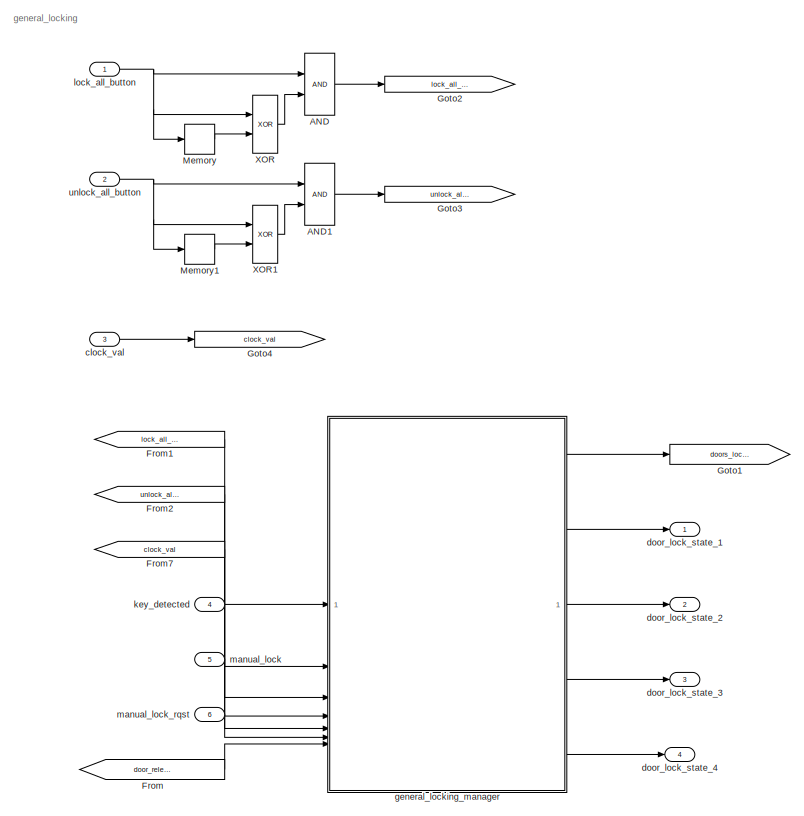
[diagram: root canvas - part 1/2, left side, full height]
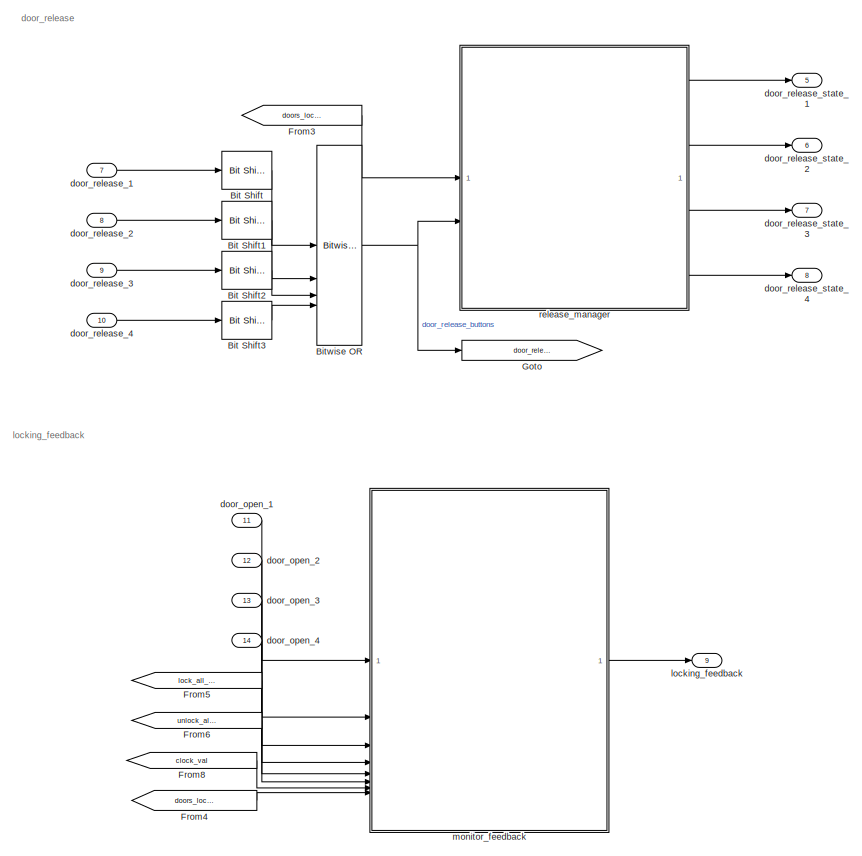
[diagram: root canvas - part 2/2, right side, full height]
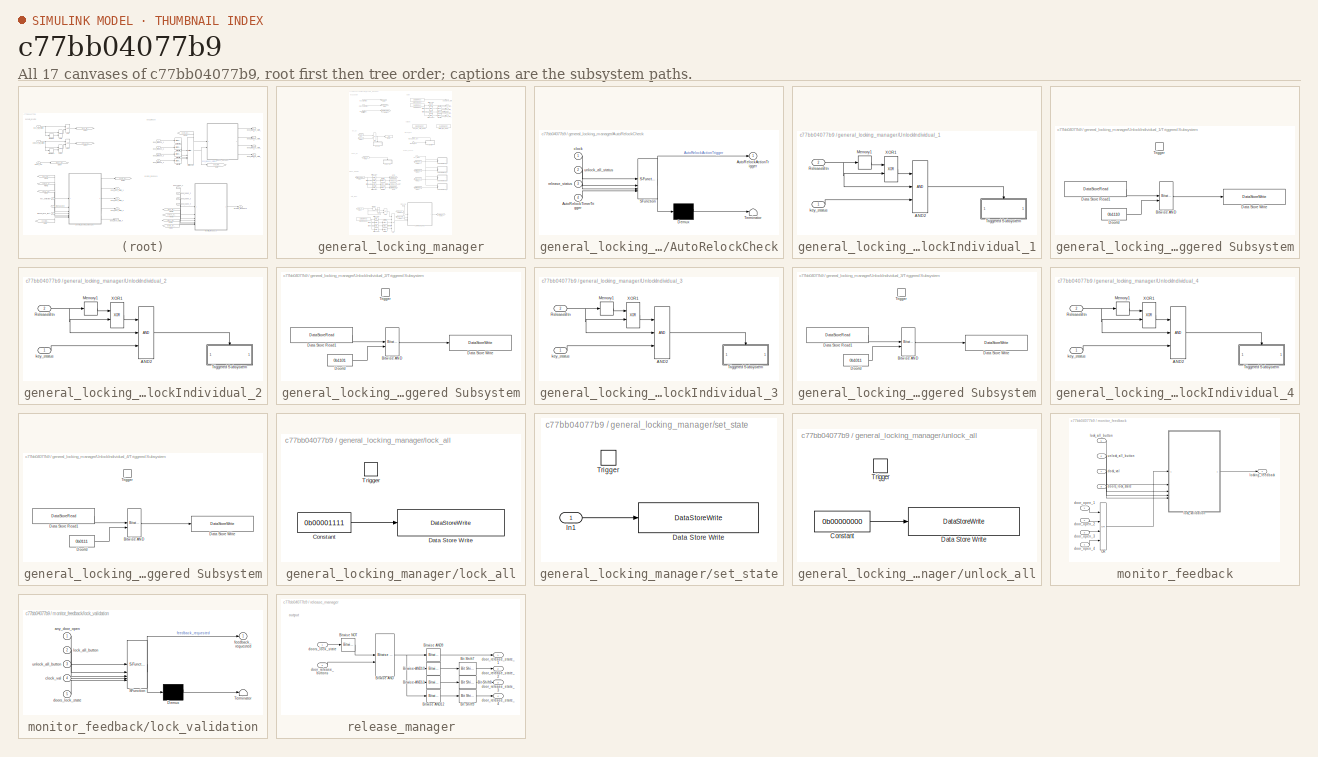
[diagram: thumbnail index - all 17 canvases of the model, root first then tree order]
MODEL slx_c77bb04077b9
KIND model
CONFIG AbsTol = auto
CONFIG EnableMultiTasking = off
CONFIG FixedStep = 0.01
CONFIG MaxStep = auto
CONFIG MinStep = auto
CONFIG RelTol = 1e-3
CONFIG SampleTimeConstraint = Unconstrained
CONFIG SolverName = FixedStepAuto
CONFIG StartTime = 0.0
CONFIG StopTime = inf
BLOCK [Logic] AND
  AllPortsSameDT = off
  IconShape = distinctive
  OutDataTypeStr = boolean
BLOCK [Logic] AND1
  AllPortsSameDT = off
  IconShape = distinctive
  OutDataTypeStr = boolean
BLOCK [Reference] Bit Shift  REF=hdlsllib/Logic and Bit
Operations/Bit Shift
  SourceBlock = hdlsllib/Logic and Bit\nOperations/Bit Shift
  SourceType = Bit Shift
BLOCK [Reference] Bit Shift1  REF=hdlsllib/Logic and Bit
Operations/Bit Shift
  SourceBlock = hdlsllib/Logic and Bit\nOperations/Bit Shift
  SourceType = Bit Shift
BLOCK [Reference] Bit Shift2  REF=hdlsllib/Logic and Bit
Operations/Bit Shift
  SourceBlock = hdlsllib/Logic and Bit\nOperations/Bit Shift
  SourceType = Bit Shift
BLOCK [Reference] Bit Shift3  REF=hdlsllib/Logic and Bit
Operations/Bit Shift
  SourceBlock = hdlsllib/Logic and Bit\nOperations/Bit Shift
  SourceType = Bit Shift
BLOCK [Reference] Bitwise OR  REF=simulink/Logic and Bit
Operations/Bitwise
Operator
  LibrarySourceBlock = simulink/Quick Insert/Logic and Bit\nOperations/Bitwise OR
  SourceBlock = simulink/Logic and Bit\nOperations/Bitwise\nOperator
  SourceType = Bitwise Operator
BLOCK [From] From
  GotoTag = door_release_buttons
BLOCK [From] From1
  GotoTag = lock_all_button
BLOCK [From] From2
  GotoTag = unlock_all_button
BLOCK [From] From3
  GotoTag = doors_lock_state
BLOCK [From] From4
  GotoTag = doors_lock_state
BLOCK [From] From5
  GotoTag = lock_all_button
BLOCK [From] From6
  GotoTag = unlock_all_button
BLOCK [From] From7
  GotoTag = clock_val
BLOCK [From] From8
  GotoTag = clock_val
BLOCK [Goto] Goto
  GotoTag = door_release_buttons
BLOCK [Goto] Goto1
  GotoTag = doors_lock_state
BLOCK [Goto] Goto2
  GotoTag = lock_all_button
BLOCK [Goto] Goto3
  GotoTag = unlock_all_button
BLOCK [Goto] Goto4
  GotoTag = clock_val
BLOCK [Memory] Memory
BLOCK [Memory] Memory1
BLOCK [Logic] XOR
  AllPortsSameDT = off
  IconShape = distinctive
  Operator = XOR
  OutDataTypeStr = boolean
BLOCK [Logic] XOR1
  AllPortsSameDT = off
  IconShape = distinctive
  Operator = XOR
  OutDataTypeStr = boolean
BLOCK [Inport] clock_val
  OutDataTypeStr = uint64
  Port = 3
BLOCK [Outport] door_lock_state_1
  OutDataTypeStr = uint8
BLOCK [Outport] door_lock_state_2
  OutDataTypeStr = uint8
  Port = 2
BLOCK [Outport] door_lock_state_3
  OutDataTypeStr = uint8
  Port = 3
BLOCK [Outport] door_lock_state_4
  OutDataTypeStr = uint8
  Port = 4
BLOCK [Inport] door_open_1
  OutDataTypeStr = uint8
  Port = 11
BLOCK [Inport] door_open_2
  OutDataTypeStr = uint8
  Port = 12
BLOCK [Inport] door_open_3
  OutDataTypeStr = uint8
  Port = 13
BLOCK [Inport] door_open_4
  OutDataTypeStr = uint8
  Port = 14
BLOCK [Inport] door_release_1
  OutDataTypeStr = uint8
  Port = 7
BLOCK [Inport] door_release_2
  OutDataTypeStr = uint8
  Port = 8
BLOCK [Inport] door_release_3
  OutDataTypeStr = uint8
  Port = 9
BLOCK [Inport] door_release_4
  OutDataTypeStr = uint8
  Port = 10
BLOCK [Outport] door_release_state_1
  OutDataTypeStr = uint8
  Port = 5
BLOCK [Outport] door_release_state_2
  OutDataTypeStr = uint8
  Port = 6
BLOCK [Outport] door_release_state_3
  OutDataTypeStr = uint8
  Port = 7
BLOCK [Outport] door_release_state_4
  OutDataTypeStr = uint8
  Port = 8
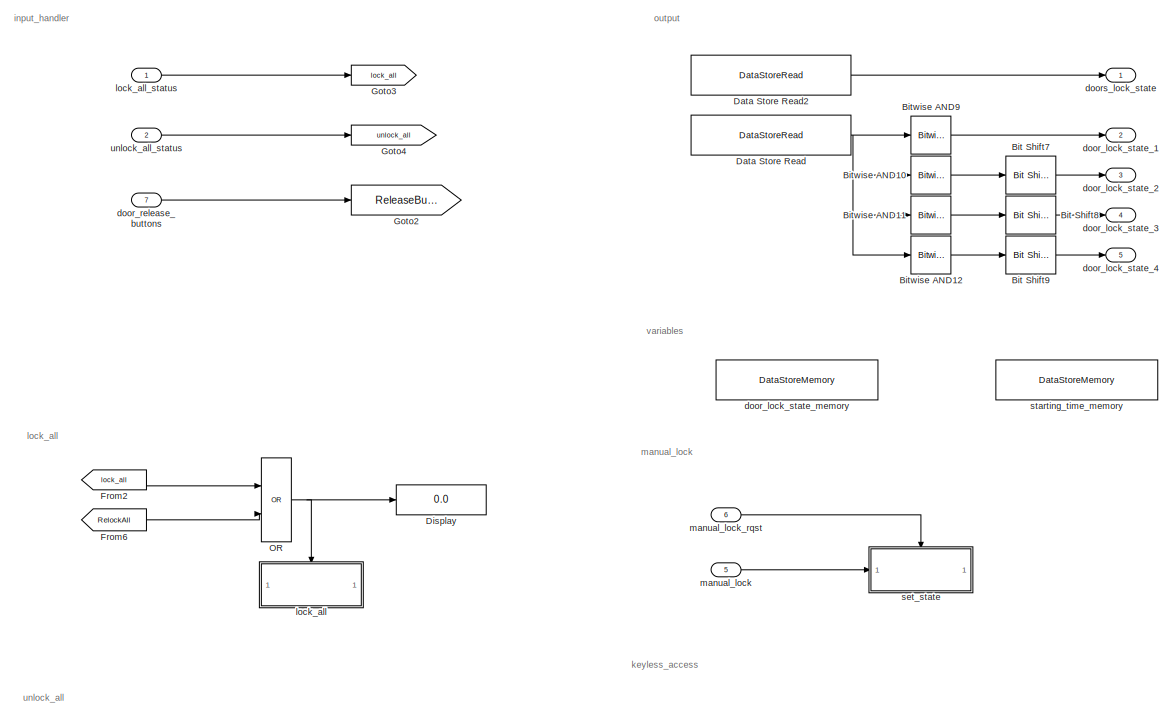
[diagram: general_locking_manager - part 1/2, full width, top band]
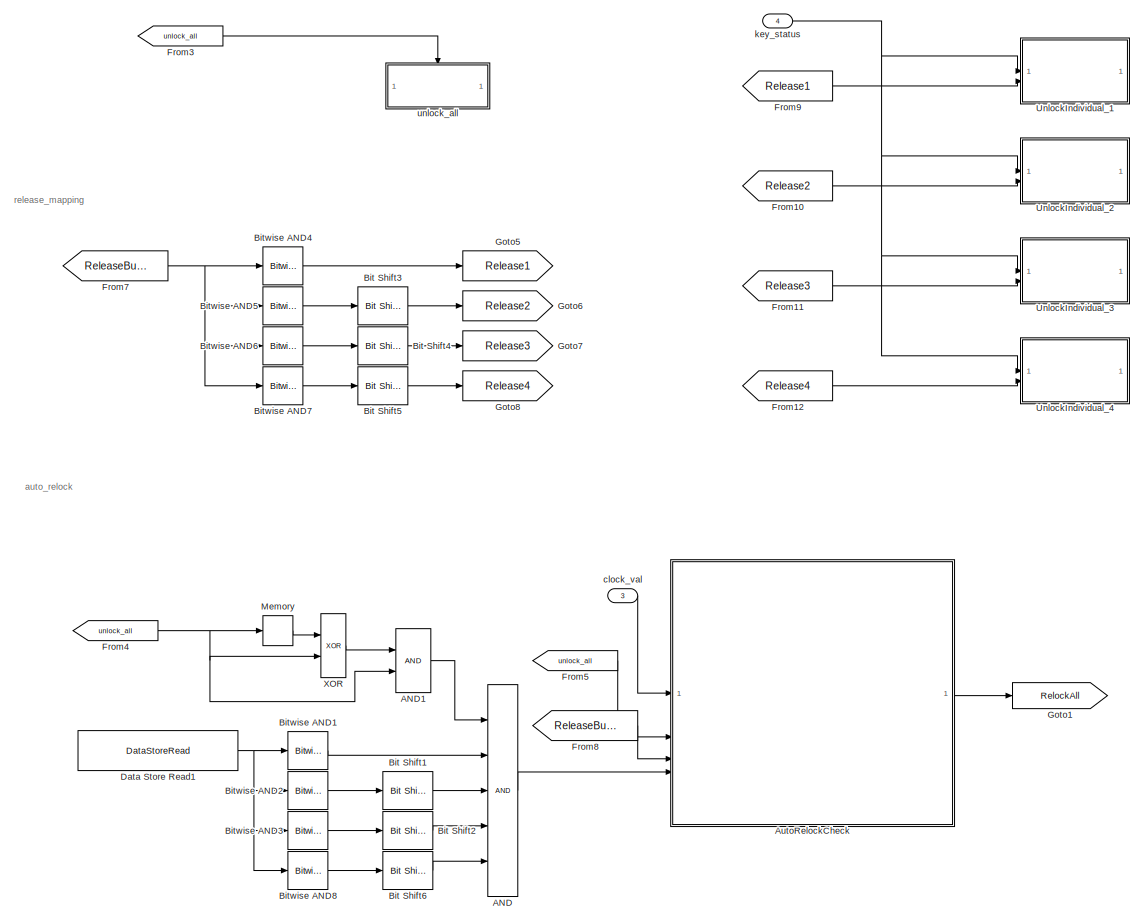
[diagram: general_locking_manager - part 2/2, full width, bottom band]
BLOCK [SubSystem] general_locking_manager
BLOCK [Logic] general_locking_manager/AND
  AllPortsSameDT = off
  IconShape = distinctive
  Inputs = 5
  OutDataTypeStr = boolean
BLOCK [Logic] general_locking_manager/AND1
  AllPortsSameDT = off
  IconShape = distinctive
  OutDataTypeStr = boolean
BLOCK [SubSystem] general_locking_manager/AutoRelockCheck
  ErrorFcn = Stateflow.Translate.translate
  PermitHierarchicalResolution = ExplicitOnly
  SFBlockType = Chart
  TreatAsAtomicUnit = on
BLOCK [Demux] general_locking_manager/AutoRelockCheck/ Demux 
  Outputs = 1
BLOCK [S-Function] general_locking_manager/AutoRelockCheck/ SFunction 
  EnableBusSupport = on
  FunctionName = sf_sfun
  PortCounts = [4 2]
  SFcnIsStateOwnerBlock = off
  SFunctionDeploymentMode = off
  Tag = Stateflow S-Function 1
BLOCK [Terminator] general_locking_manager/AutoRelockCheck/ Terminator 
BLOCK [Outport] general_locking_manager/AutoRelockCheck/AutoRelockActionTrigger
BLOCK [Inport] general_locking_manager/AutoRelockCheck/AutoRelockTimerTrigger
  Port = 4
BLOCK [Inport] general_locking_manager/AutoRelockCheck/clock
BLOCK [Inport] general_locking_manager/AutoRelockCheck/release_status
  Port = 3
BLOCK [Inport] general_locking_manager/AutoRelockCheck/unlock_all_status
  Port = 2
BLOCK [Reference] general_locking_manager/Bit Shift1  REF=hdlsllib/Logic and Bit
Operations/Bit Shift
  SourceBlock = hdlsllib/Logic and Bit\nOperations/Bit Shift
  SourceType = Bit Shift
BLOCK [Reference] general_locking_manager/Bit Shift2  REF=hdlsllib/Logic and Bit
Operations/Bit Shift
  SourceBlock = hdlsllib/Logic and Bit\nOperations/Bit Shift
  SourceType = Bit Shift
BLOCK [Reference] general_locking_manager/Bit Shift3  REF=hdlsllib/Logic and Bit
Operations/Bit Shift
  SourceBlock = hdlsllib/Logic and Bit\nOperations/Bit Shift
  SourceType = Bit Shift
BLOCK [Reference] general_locking_manager/Bit Shift4  REF=hdlsllib/Logic and Bit
Operations/Bit Shift
  SourceBlock = hdlsllib/Logic and Bit\nOperations/Bit Shift
  SourceType = Bit Shift
BLOCK [Reference] general_locking_manager/Bit Shift5  REF=hdlsllib/Logic and Bit
Operations/Bit Shift
  SourceBlock = hdlsllib/Logic and Bit\nOperations/Bit Shift
  SourceType = Bit Shift
BLOCK [Reference] general_locking_manager/Bit Shift6  REF=hdlsllib/Logic and Bit
Operations/Bit Shift
  SourceBlock = hdlsllib/Logic and Bit\nOperations/Bit Shift
  SourceType = Bit Shift
BLOCK [Reference] general_locking_manager/Bit Shift7  REF=hdlsllib/Logic and Bit
Operations/Bit Shift
  SourceBlock = hdlsllib/Logic and Bit\nOperations/Bit Shift
  SourceType = Bit Shift
BLOCK [Reference] general_locking_manager/Bit Shift8  REF=hdlsllib/Logic and Bit
Operations/Bit Shift
  SourceBlock = hdlsllib/Logic and Bit\nOperations/Bit Shift
  SourceType = Bit Shift
BLOCK [Reference] general_locking_manager/Bit Shift9  REF=hdlsllib/Logic and Bit
Operations/Bit Shift
  SourceBlock = hdlsllib/Logic and Bit\nOperations/Bit Shift
  SourceType = Bit Shift
BLOCK [Reference] general_locking_manager/Bitwise AND1  REF=simulink/Logic and Bit
Operations/Bitwise
Operator
  LibrarySourceBlock = simulink/Quick Insert/Logic and Bit\nOperations/Bitwise AND
  SourceBlock = simulink/Logic and Bit\nOperations/Bitwise\nOperator
  SourceType = Bitwise Operator
BLOCK [Reference] general_locking_manager/Bitwise AND10  REF=simulink/Logic and Bit
Operations/Bitwise
Operator
  LibrarySourceBlock = simulink/Quick Insert/Logic and Bit\nOperations/Bitwise AND
  SourceBlock = simulink/Logic and Bit\nOperations/Bitwise\nOperator
  SourceType = Bitwise Operator
BLOCK [Reference] general_locking_manager/Bitwise AND11  REF=simulink/Logic and Bit
Operations/Bitwise
Operator
  LibrarySourceBlock = simulink/Quick Insert/Logic and Bit\nOperations/Bitwise AND
  SourceBlock = simulink/Logic and Bit\nOperations/Bitwise\nOperator
  SourceType = Bitwise Operator
BLOCK [Reference] general_locking_manager/Bitwise AND12  REF=simulink/Logic and Bit
Operations/Bitwise
Operator
  LibrarySourceBlock = simulink/Quick Insert/Logic and Bit\nOperations/Bitwise AND
  SourceBlock = simulink/Logic and Bit\nOperations/Bitwise\nOperator
  SourceType = Bitwise Operator
BLOCK [Reference] general_locking_manager/Bitwise AND2  REF=simulink/Logic and Bit
Operations/Bitwise
Operator
  LibrarySourceBlock = simulink/Quick Insert/Logic and Bit\nOperations/Bitwise AND
  SourceBlock = simulink/Logic and Bit\nOperations/Bitwise\nOperator
  SourceType = Bitwise Operator
BLOCK [Reference] general_locking_manager/Bitwise AND3  REF=simulink/Logic and Bit
Operations/Bitwise
Operator
  LibrarySourceBlock = simulink/Quick Insert/Logic and Bit\nOperations/Bitwise AND
  SourceBlock = simulink/Logic and Bit\nOperations/Bitwise\nOperator
  SourceType = Bitwise Operator
BLOCK [Reference] general_locking_manager/Bitwise AND4  REF=simulink/Logic and Bit
Operations/Bitwise
Operator
  LibrarySourceBlock = simulink/Quick Insert/Logic and Bit\nOperations/Bitwise AND
  SourceBlock = simulink/Logic and Bit\nOperations/Bitwise\nOperator
  SourceType = Bitwise Operator
BLOCK [Reference] general_locking_manager/Bitwise AND5  REF=simulink/Logic and Bit
Operations/Bitwise
Operator
  LibrarySourceBlock = simulink/Quick Insert/Logic and Bit\nOperations/Bitwise AND
  SourceBlock = simulink/Logic and Bit\nOperations/Bitwise\nOperator
  SourceType = Bitwise Operator
BLOCK [Reference] general_locking_manager/Bitwise AND6  REF=simulink/Logic and Bit
Operations/Bitwise
Operator
  LibrarySourceBlock = simulink/Quick Insert/Logic and Bit\nOperations/Bitwise AND
  SourceBlock = simulink/Logic and Bit\nOperations/Bitwise\nOperator
  SourceType = Bitwise Operator
BLOCK [Reference] general_locking_manager/Bitwise AND7  REF=simulink/Logic and Bit
Operations/Bitwise
Operator
  LibrarySourceBlock = simulink/Quick Insert/Logic and Bit\nOperations/Bitwise AND
  SourceBlock = simulink/Logic and Bit\nOperations/Bitwise\nOperator
  SourceType = Bitwise Operator
BLOCK [Reference] general_locking_manager/Bitwise AND8  REF=simulink/Logic and Bit
Operations/Bitwise
Operator
  LibrarySourceBlock = simulink/Quick Insert/Logic and Bit\nOperations/Bitwise AND
  SourceBlock = simulink/Logic and Bit\nOperations/Bitwise\nOperator
  SourceType = Bitwise Operator
BLOCK [Reference] general_locking_manager/Bitwise AND9  REF=simulink/Logic and Bit
Operations/Bitwise
Operator
  LibrarySourceBlock = simulink/Quick Insert/Logic and Bit\nOperations/Bitwise AND
  SourceBlock = simulink/Logic and Bit\nOperations/Bitwise\nOperator
  SourceType = Bitwise Operator
BLOCK [DataStoreRead] general_locking_manager/Data Store Read
  DataStoreName = door_lock_state
  IndexOptions = Index vector (dialog)
  Indices = 1
  OutputSizes = 1
BLOCK [DataStoreRead] general_locking_manager/Data Store Read1
  DataStoreName = door_lock_state
  IndexOptions = Index vector (dialog)
  Indices = 1
  OutputSizes = 1
BLOCK [DataStoreRead] general_locking_manager/Data Store Read2
  DataStoreName = door_lock_state
  IndexOptions = Index vector (dialog)
  Indices = 1
  OutputSizes = 1
BLOCK [Display] general_locking_manager/Display
  Decimation = 1
BLOCK [From] general_locking_manager/From10
  GotoTag = Release2
BLOCK [From] general_locking_manager/From11
  GotoTag = Release3
BLOCK [From] general_locking_manager/From12
  GotoTag = Release4
BLOCK [From] general_locking_manager/From2
  GotoTag = lock_all
BLOCK [From] general_locking_manager/From3
  GotoTag = unlock_all
BLOCK [From] general_locking_manager/From4
  GotoTag = unlock_all
BLOCK [From] general_locking_manager/From5
  GotoTag = unlock_all
BLOCK [From] general_locking_manager/From6
  GotoTag = RelockAll
BLOCK [From] general_locking_manager/From7
  GotoTag = ReleaseButtonsState
BLOCK [From] general_locking_manager/From8
  GotoTag = ReleaseButtonsState
BLOCK [From] general_locking_manager/From9
  GotoTag = Release1
BLOCK [Goto] general_locking_manager/Goto1
  GotoTag = RelockAll
BLOCK [Goto] general_locking_manager/Goto2
  GotoTag = ReleaseButtonsState
BLOCK [Goto] general_locking_manager/Goto3
  GotoTag = lock_all
BLOCK [Goto] general_locking_manager/Goto4
  GotoTag = unlock_all
BLOCK [Goto] general_locking_manager/Goto5
  GotoTag = Release1
BLOCK [Goto] general_locking_manager/Goto6
  GotoTag = Release2
BLOCK [Goto] general_locking_manager/Goto7
  GotoTag = Release3
BLOCK [Goto] general_locking_manager/Goto8
  GotoTag = Release4
BLOCK [Memory] general_locking_manager/Memory
BLOCK [Logic] general_locking_manager/OR
  AllPortsSameDT = off
  IconShape = distinctive
  Operator = OR
  OutDataTypeStr = boolean
BLOCK [SubSystem] general_locking_manager/UnlockIndividual_1
BLOCK [Logic] general_locking_manager/UnlockIndividual_1/AND2
  AllPortsSameDT = off
  IconShape = distinctive
  Inputs = 3
  OutDataTypeStr = boolean
BLOCK [Memory] general_locking_manager/UnlockIndividual_1/Memory1
BLOCK [Inport] general_locking_manager/UnlockIndividual_1/ReleaseBtn
  Port = 2
BLOCK [SubSystem] general_locking_manager/UnlockIndividual_1/Triggered Subsystem
  TreatAsAtomicUnit = on
BLOCK [Reference] general_locking_manager/UnlockIndividual_1/Triggered Subsystem/Bitwise AND  REF=simulink/Logic and Bit
Operations/Bitwise
Operator
  LibrarySourceBlock = simulink/Quick Insert/Logic and Bit\nOperations/Bitwise AND
  SourceBlock = simulink/Logic and Bit\nOperations/Bitwise\nOperator
  SourceType = Bitwise Operator
BLOCK [DataStoreRead] general_locking_manager/UnlockIndividual_1/Triggered Subsystem/Data Store Read1
  DataStoreName = door_lock_state
  IndexOptions = Index vector (dialog)
  Indices = 1
  OutputSizes = 1
BLOCK [DataStoreWrite] general_locking_manager/UnlockIndividual_1/Triggered Subsystem/Data Store Write
  DataStoreName = door_lock_state
  IndexOptions = Index vector (dialog)
  Indices = 1
  OutputSizes = 1
BLOCK [Constant] general_locking_manager/UnlockIndividual_1/Triggered Subsystem/DoorId
  OutDataTypeStr = uint8
  Value = 0b1110
BLOCK [TriggerPort] general_locking_manager/UnlockIndividual_1/Triggered Subsystem/Trigger
  StatesWhenEnabling = held
  VariantControl = (inherit)
BLOCK [Logic] general_locking_manager/UnlockIndividual_1/XOR1
  AllPortsSameDT = off
  IconShape = distinctive
  Operator = XOR
  OutDataTypeStr = boolean
BLOCK [Inport] general_locking_manager/UnlockIndividual_1/key_status
BLOCK [SubSystem] general_locking_manager/UnlockIndividual_2
BLOCK [Logic] general_locking_manager/UnlockIndividual_2/AND2
  AllPortsSameDT = off
  IconShape = distinctive
  Inputs = 3
  OutDataTypeStr = boolean
BLOCK [Memory] general_locking_manager/UnlockIndividual_2/Memory1
BLOCK [Inport] general_locking_manager/UnlockIndividual_2/ReleaseBtn
  Port = 2
BLOCK [SubSystem] general_locking_manager/UnlockIndividual_2/Triggered Subsystem
  TreatAsAtomicUnit = on
BLOCK [Reference] general_locking_manager/UnlockIndividual_2/Triggered Subsystem/Bitwise AND  REF=simulink/Logic and Bit
Operations/Bitwise
Operator
  LibrarySourceBlock = simulink/Quick Insert/Logic and Bit\nOperations/Bitwise AND
  SourceBlock = simulink/Logic and Bit\nOperations/Bitwise\nOperator
  SourceType = Bitwise Operator
BLOCK [DataStoreRead] general_locking_manager/UnlockIndividual_2/Triggered Subsystem/Data Store Read1
  DataStoreName = door_lock_state
  IndexOptions = Index vector (dialog)
  Indices = 1
  OutputSizes = 1
BLOCK [DataStoreWrite] general_locking_manager/UnlockIndividual_2/Triggered Subsystem/Data Store Write
  DataStoreName = door_lock_state
  IndexOptions = Index vector (dialog)
  Indices = 1
  OutputSizes = 1
BLOCK [Constant] general_locking_manager/UnlockIndividual_2/Triggered Subsystem/DoorId
  OutDataTypeStr = uint8
  Value = 0b1101
BLOCK [TriggerPort] general_locking_manager/UnlockIndividual_2/Triggered Subsystem/Trigger
  StatesWhenEnabling = held
  VariantControl = (inherit)
BLOCK [Logic] general_locking_manager/UnlockIndividual_2/XOR1
  AllPortsSameDT = off
  IconShape = distinctive
  Operator = XOR
  OutDataTypeStr = boolean
BLOCK [Inport] general_locking_manager/UnlockIndividual_2/key_status
BLOCK [SubSystem] general_locking_manager/UnlockIndividual_3
BLOCK [Logic] general_locking_manager/UnlockIndividual_3/AND2
  AllPortsSameDT = off
  IconShape = distinctive
  Inputs = 3
  OutDataTypeStr = boolean
BLOCK [Memory] general_locking_manager/UnlockIndividual_3/Memory1
BLOCK [Inport] general_locking_manager/UnlockIndividual_3/ReleaseBtn
  Port = 2
BLOCK [SubSystem] general_locking_manager/UnlockIndividual_3/Triggered Subsystem
  TreatAsAtomicUnit = on
BLOCK [Reference] general_locking_manager/UnlockIndividual_3/Triggered Subsystem/Bitwise AND  REF=simulink/Logic and Bit
Operations/Bitwise
Operator
  LibrarySourceBlock = simulink/Quick Insert/Logic and Bit\nOperations/Bitwise AND
  SourceBlock = simulink/Logic and Bit\nOperations/Bitwise\nOperator
  SourceType = Bitwise Operator
BLOCK [DataStoreRead] general_locking_manager/UnlockIndividual_3/Triggered Subsystem/Data Store Read1
  DataStoreName = door_lock_state
  IndexOptions = Index vector (dialog)
  Indices = 1
  OutputSizes = 1
BLOCK [DataStoreWrite] general_locking_manager/UnlockIndividual_3/Triggered Subsystem/Data Store Write
  DataStoreName = door_lock_state
  IndexOptions = Index vector (dialog)
  Indices = 1
  OutputSizes = 1
BLOCK [Constant] general_locking_manager/UnlockIndividual_3/Triggered Subsystem/DoorId
  OutDataTypeStr = uint8
  Value = 0b1011
BLOCK [TriggerPort] general_locking_manager/UnlockIndividual_3/Triggered Subsystem/Trigger
  StatesWhenEnabling = held
  VariantControl = (inherit)
BLOCK [Logic] general_locking_manager/UnlockIndividual_3/XOR1
  AllPortsSameDT = off
  IconShape = distinctive
  Operator = XOR
  OutDataTypeStr = boolean
BLOCK [Inport] general_locking_manager/UnlockIndividual_3/key_status
BLOCK [SubSystem] general_locking_manager/UnlockIndividual_4
BLOCK [Logic] general_locking_manager/UnlockIndividual_4/AND2
  AllPortsSameDT = off
  IconShape = distinctive
  Inputs = 3
  OutDataTypeStr = boolean
BLOCK [Memory] general_locking_manager/UnlockIndividual_4/Memory1
BLOCK [Inport] general_locking_manager/UnlockIndividual_4/ReleaseBtn
  Port = 2
BLOCK [SubSystem] general_locking_manager/UnlockIndividual_4/Triggered Subsystem
  TreatAsAtomicUnit = on
BLOCK [Reference] general_locking_manager/UnlockIndividual_4/Triggered Subsystem/Bitwise AND  REF=simulink/Logic and Bit
Operations/Bitwise
Operator
  LibrarySourceBlock = simulink/Quick Insert/Logic and Bit\nOperations/Bitwise AND
  SourceBlock = simulink/Logic and Bit\nOperations/Bitwise\nOperator
  SourceType = Bitwise Operator
BLOCK [DataStoreRead] general_locking_manager/UnlockIndividual_4/Triggered Subsystem/Data Store Read1
  DataStoreName = door_lock_state
  IndexOptions = Index vector (dialog)
  Indices = 1
  OutputSizes = 1
BLOCK [DataStoreWrite] general_locking_manager/UnlockIndividual_4/Triggered Subsystem/Data Store Write
  DataStoreName = door_lock_state
  IndexOptions = Index vector (dialog)
  Indices = 1
  OutputSizes = 1
BLOCK [Constant] general_locking_manager/UnlockIndividual_4/Triggered Subsystem/DoorId
  OutDataTypeStr = uint8
  Value = 0b0111
BLOCK [TriggerPort] general_locking_manager/UnlockIndividual_4/Triggered Subsystem/Trigger
  StatesWhenEnabling = held
  VariantControl = (inherit)
BLOCK [Logic] general_locking_manager/UnlockIndividual_4/XOR1
  AllPortsSameDT = off
  IconShape = distinctive
  Operator = XOR
  OutDataTypeStr = boolean
BLOCK [Inport] general_locking_manager/UnlockIndividual_4/key_status
BLOCK [Logic] general_locking_manager/XOR
  AllPortsSameDT = off
  IconShape = distinctive
  Operator = XOR
  OutDataTypeStr = boolean
BLOCK [Inport] general_locking_manager/clock_val
  Port = 3
BLOCK [Outport] general_locking_manager/door_lock_state_1
  Port = 2
BLOCK [Outport] general_locking_manager/door_lock_state_2
  Port = 3
BLOCK [Outport] general_locking_manager/door_lock_state_3
  Port = 4
BLOCK [Outport] general_locking_manager/door_lock_state_4
  Port = 5
BLOCK [DataStoreMemory] general_locking_manager/door_lock_state_memory
  DataStoreName = door_lock_state
  ShowAdditionalParam = off
  WriteAfterWriteMsg = warning
BLOCK [Inport] general_locking_manager/door_release_buttons
  Port = 7
BLOCK [Outport] general_locking_manager/doors_lock_state
BLOCK [Inport] general_locking_manager/key_status
  Port = 4
BLOCK [SubSystem] general_locking_manager/lock_all
  TreatAsAtomicUnit = on
BLOCK [Constant] general_locking_manager/lock_all/Constant
  OutDataTypeStr = uint8
  Value = 0b00001111
BLOCK [DataStoreWrite] general_locking_manager/lock_all/Data Store Write
  DataStoreName = door_lock_state
  IndexOptions = Index vector (dialog)
  Indices = 1
  OutputSizes = 1
BLOCK [TriggerPort] general_locking_manager/lock_all/Trigger
  StatesWhenEnabling = held
  VariantControl = (inherit)
BLOCK [Inport] general_locking_manager/lock_all_status
BLOCK [Inport] general_locking_manager/manual_lock
  Port = 5
BLOCK [Inport] general_locking_manager/manual_lock_rqst
  Port = 6
BLOCK [SubSystem] general_locking_manager/set_state
  TreatAsAtomicUnit = on
BLOCK [DataStoreWrite] general_locking_manager/set_state/Data Store Write
  DataStoreName = door_lock_state
  IndexOptions = Index vector (dialog)
  Indices = 1
  OutputSizes = 1
BLOCK [Inport] general_locking_manager/set_state/In1
BLOCK [TriggerPort] general_locking_manager/set_state/Trigger
  StatesWhenEnabling = held
  VariantControl = (inherit)
BLOCK [DataStoreMemory] general_locking_manager/starting_time_memory
  DataStoreName = starting_time
  OutDataTypeStr = uint64
  ShowAdditionalParam = off
  SignalType = real
  WriteAfterWriteMsg = warning
BLOCK [SubSystem] general_locking_manager/unlock_all
  TreatAsAtomicUnit = on
BLOCK [Constant] general_locking_manager/unlock_all/Constant
  OutDataTypeStr = uint8
  Value = 0b00000000
BLOCK [DataStoreWrite] general_locking_manager/unlock_all/Data Store Write
  DataStoreName = door_lock_state
  IndexOptions = Index vector (dialog)
  Indices = 1
  OutputSizes = 1
BLOCK [TriggerPort] general_locking_manager/unlock_all/Trigger
  StatesWhenEnabling = held
  VariantControl = (inherit)
BLOCK [Inport] general_locking_manager/unlock_all_status
  Port = 2
BLOCK [Inport] key_detected
  OutDataTypeStr = uint8
  Port = 4
BLOCK [Inport] lock_all_button
  OutDataTypeStr = uint8
BLOCK [Outport] locking_feedback
  OutDataTypeStr = uint8
  Port = 9
BLOCK [Inport] manual_lock
  OutDataTypeStr = uint8
  Port = 5
BLOCK [Inport] manual_lock_rqst
  OutDataTypeStr = uint8
  Port = 6
BLOCK [SubSystem] monitor_feedback
BLOCK [Logic] monitor_feedback/OR
  AllPortsSameDT = off
  IconShape = distinctive
  Inputs = 4
  Operator = OR
  OutDataTypeStr = boolean
BLOCK [Inport] monitor_feedback/clock_val
  Port = 7
BLOCK [Inport] monitor_feedback/door_open_1
BLOCK [Inport] monitor_feedback/door_open_2
  Port = 2
BLOCK [Inport] monitor_feedback/door_open_3
  Port = 3
BLOCK [Inport] monitor_feedback/door_open_4
  Port = 4
BLOCK [Inport] monitor_feedback/doors_lock_state
  Port = 8
BLOCK [Inport] monitor_feedback/lock_all_button
  Port = 5
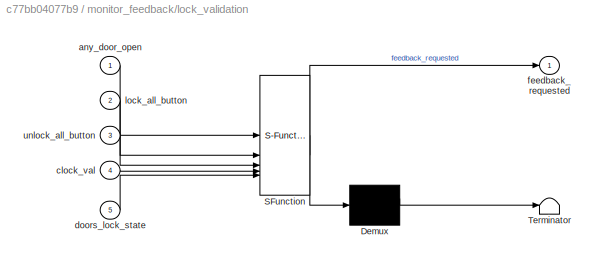
BLOCK [SubSystem] monitor_feedback/lock_validation
  ErrorFcn = Stateflow.Translate.translate
  PermitHierarchicalResolution = ExplicitOnly
  PortSchema = {"entries":[{"content":{"sides":[{"content":{"connectorIds":["In2","In3","In4","In5","In1"]},"type":"ConnectorPlacement.EquallySpacedRectSide","uuid":"52e15686-5ebb-4dff-9781-48c2c4b3ce78"},{"content":{"connectorIds":["Out1"],"side":"RIGHT"},"type":"ConnectorPlacement.EquallySpacedRectSide","uuid":"a20341eb-56fb-48bd-b170-7e58cea06054"},{"content":{"side":"TOP"},"type":"ConnectorPlacement.EquallyS...<+246ch>
  SFBlockType = Chart
  TreatAsAtomicUnit = on
BLOCK [Demux] monitor_feedback/lock_validation/ Demux 
  Outputs = 1
BLOCK [S-Function] monitor_feedback/lock_validation/ SFunction 
  EnableBusSupport = on
  FunctionName = sf_sfun
  PortCounts = [5 2]
  SFcnIsStateOwnerBlock = off
  SFunctionDeploymentMode = off
  Tag = Stateflow S-Function 3
BLOCK [Terminator] monitor_feedback/lock_validation/ Terminator 
BLOCK [Inport] monitor_feedback/lock_validation/any_door_open
BLOCK [Inport] monitor_feedback/lock_validation/clock_val
  Port = 4
BLOCK [Inport] monitor_feedback/lock_validation/doors_lock_state
  Port = 5
BLOCK [Outport] monitor_feedback/lock_validation/feedback_requested
BLOCK [Inport] monitor_feedback/lock_validation/lock_all_button
  Port = 2
BLOCK [Inport] monitor_feedback/lock_validation/unlock_all_button
  Port = 3
BLOCK [Outport] monitor_feedback/locking_feedback
BLOCK [Inport] monitor_feedback/unlock_all_button
  Port = 6
BLOCK [SubSystem] release_manager
BLOCK [Reference] release_manager/Bit Shift7  REF=hdlsllib/Logic and Bit
Operations/Bit Shift
  SourceBlock = hdlsllib/Logic and Bit\nOperations/Bit Shift
  SourceType = Bit Shift
BLOCK [Reference] release_manager/Bit Shift8  REF=hdlsllib/Logic and Bit
Operations/Bit Shift
  SourceBlock = hdlsllib/Logic and Bit\nOperations/Bit Shift
  SourceType = Bit Shift
BLOCK [Reference] release_manager/Bit Shift9  REF=hdlsllib/Logic and Bit
Operations/Bit Shift
  SourceBlock = hdlsllib/Logic and Bit\nOperations/Bit Shift
  SourceType = Bit Shift
BLOCK [Reference] release_manager/Bitwise AND  REF=simulink/Logic and Bit
Operations/Bitwise
Operator
  LibrarySourceBlock = simulink/Quick Insert/Logic and Bit\nOperations/Bitwise AND
  SourceBlock = simulink/Logic and Bit\nOperations/Bitwise\nOperator
  SourceType = Bitwise Operator
BLOCK [Reference] release_manager/Bitwise AND10  REF=simulink/Logic and Bit
Operations/Bitwise
Operator
  LibrarySourceBlock = simulink/Quick Insert/Logic and Bit\nOperations/Bitwise AND
  SourceBlock = simulink/Logic and Bit\nOperations/Bitwise\nOperator
  SourceType = Bitwise Operator
BLOCK [Reference] release_manager/Bitwise AND11  REF=simulink/Logic and Bit
Operations/Bitwise
Operator
  LibrarySourceBlock = simulink/Quick Insert/Logic and Bit\nOperations/Bitwise AND
  SourceBlock = simulink/Logic and Bit\nOperations/Bitwise\nOperator
  SourceType = Bitwise Operator
BLOCK [Reference] release_manager/Bitwise AND12  REF=simulink/Logic and Bit
Operations/Bitwise
Operator
  LibrarySourceBlock = simulink/Quick Insert/Logic and Bit\nOperations/Bitwise AND
  SourceBlock = simulink/Logic and Bit\nOperations/Bitwise\nOperator
  SourceType = Bitwise Operator
BLOCK [Reference] release_manager/Bitwise AND9  REF=simulink/Logic and Bit
Operations/Bitwise
Operator
  LibrarySourceBlock = simulink/Quick Insert/Logic and Bit\nOperations/Bitwise AND
  SourceBlock = simulink/Logic and Bit\nOperations/Bitwise\nOperator
  SourceType = Bitwise Operator
BLOCK [Reference] release_manager/Bitwise NOT  REF=simulink/Logic and Bit
Operations/Bitwise
Operator
  LibrarySourceBlock = simulink/Quick Insert/Logic and Bit\nOperations/Bitwise NOT
  SourceBlock = simulink/Logic and Bit\nOperations/Bitwise\nOperator
  SourceType = Bitwise Operator
BLOCK [Inport] release_manager/door_release_buttons
  Port = 2
BLOCK [Outport] release_manager/door_release_state_1
BLOCK [Outport] release_manager/door_release_state_2
  Port = 2
BLOCK [Outport] release_manager/door_release_state_3
  Port = 3
BLOCK [Outport] release_manager/door_release_state_4
  Port = 4
BLOCK [Inport] release_manager/doors_lock_state
BLOCK [Inport] unlock_all_button
  OutDataTypeStr = uint8
  Port = 2
ANNOTATION (root): door_release
ANNOTATION (root): general_locking
ANNOTATION (root): locking_feedback
ANNOTATION general_locking_manager: auto_relock
ANNOTATION general_locking_manager: input_handler
ANNOTATION general_locking_manager: keyless_access
ANNOTATION general_locking_manager: lock_all
ANNOTATION general_locking_manager: manual_lock
ANNOTATION general_locking_manager: output
ANNOTATION general_locking_manager: release_mapping
ANNOTATION general_locking_manager: unlock_all
ANNOTATION general_locking_manager: variables
ANNOTATION release_manager: output
LINE AND1:1 -> Goto3:1
LINE AND:1 -> Goto2:1
LINE Bit Shift1:1 -> Bitwise OR:2
LINE Bit Shift2:1 -> Bitwise OR:3
LINE Bit Shift3:1 -> Bitwise OR:4
LINE Bit Shift:1 -> Bitwise OR:1
NET Bitwise OR:1 -> Goto:1, release_manager:2
LINE From1:1 -> general_locking_manager:1
LINE From2:1 -> general_locking_manager:2
LINE From3:1 -> release_manager:1
LINE From4:1 -> monitor_feedback:8
LINE From5:1 -> monitor_feedback:5
LINE From6:1 -> monitor_feedback:6
LINE From7:1 -> general_locking_manager:3
LINE From8:1 -> monitor_feedback:7
LINE From:1 -> general_locking_manager:7
LINE Memory1:1 -> XOR1:2
LINE Memory:1 -> XOR:2
LINE XOR1:1 -> AND1:2
LINE XOR:1 -> AND:2
LINE clock_val:1 -> Goto4:1
LINE door_open_1:1 -> monitor_feedback:1
LINE door_open_2:1 -> monitor_feedback:2
LINE door_open_3:1 -> monitor_feedback:3
LINE door_open_4:1 -> monitor_feedback:4
LINE door_release_1:1 -> Bit Shift:1
LINE door_release_2:1 -> Bit Shift1:1
LINE door_release_3:1 -> Bit Shift2:1
LINE door_release_4:1 -> Bit Shift3:1
LINE general_locking_manager/AND1:1 -> general_locking_manager/AND:1
LINE general_locking_manager/AND:1 -> general_locking_manager/AutoRelockCheck:4
LINE general_locking_manager/AutoRelockCheck:1 -> general_locking_manager/Goto1:1
LINE general_locking_manager/Bit Shift1:1 -> general_locking_manager/AND:3
LINE general_locking_manager/Bit Shift2:1 -> general_locking_manager/AND:4
LINE general_locking_manager/Bit Shift3:1 -> general_locking_manager/Goto6:1
LINE general_locking_manager/Bit Shift4:1 -> general_locking_manager/Goto7:1
LINE general_locking_manager/Bit Shift5:1 -> general_locking_manager/Goto8:1
LINE general_locking_manager/Bit Shift6:1 -> general_locking_manager/AND:5
LINE general_locking_manager/Bit Shift7:1 -> general_locking_manager/door_lock_state_2:1
LINE general_locking_manager/Bit Shift8:1 -> general_locking_manager/door_lock_state_3:1
LINE general_locking_manager/Bit Shift9:1 -> general_locking_manager/door_lock_state_4:1
LINE general_locking_manager/Bitwise AND10:1 -> general_locking_manager/Bit Shift7:1
LINE general_locking_manager/Bitwise AND11:1 -> general_locking_manager/Bit Shift8:1
LINE general_locking_manager/Bitwise AND12:1 -> general_locking_manager/Bit Shift9:1
LINE general_locking_manager/Bitwise AND1:1 -> general_locking_manager/AND:2
LINE general_locking_manager/Bitwise AND2:1 -> general_locking_manager/Bit Shift1:1
LINE general_locking_manager/Bitwise AND3:1 -> general_locking_manager/Bit Shift2:1
LINE general_locking_manager/Bitwise AND4:1 -> general_locking_manager/Goto5:1
LINE general_locking_manager/Bitwise AND5:1 -> general_locking_manager/Bit Shift3:1
LINE general_locking_manager/Bitwise AND6:1 -> general_locking_manager/Bit Shift4:1
LINE general_locking_manager/Bitwise AND7:1 -> general_locking_manager/Bit Shift5:1
LINE general_locking_manager/Bitwise AND8:1 -> general_locking_manager/Bit Shift6:1
LINE general_locking_manager/Bitwise AND9:1 -> general_locking_manager/door_lock_state_1:1
NET general_locking_manager/Data Store Read1:1 -> general_locking_manager/Bitwise AND1:1, general_locking_manager/Bitwise AND2:1, general_locking_manager/Bitwise AND3:1, general_locking_manager/Bitwise AND8:1
LINE general_locking_manager/Data Store Read2:1 -> general_locking_manager/doors_lock_state:1
NET general_locking_manager/Data Store Read:1 -> general_locking_manager/Bitwise AND10:1, general_locking_manager/Bitwise AND11:1, general_locking_manager/Bitwise AND12:1, general_locking_manager/Bitwise AND9:1
LINE general_locking_manager/From10:1 -> general_locking_manager/UnlockIndividual_2:2
LINE general_locking_manager/From11:1 -> general_locking_manager/UnlockIndividual_3:2
LINE general_locking_manager/From12:1 -> general_locking_manager/UnlockIndividual_4:2
LINE general_locking_manager/From2:1 -> general_locking_manager/OR:1
LINE general_locking_manager/From3:1 -> general_locking_manager/unlock_all:trigger
NET general_locking_manager/From4:1 -> general_locking_manager/AND1:2, general_locking_manager/Memory:1, general_locking_manager/XOR:2
LINE general_locking_manager/From5:1 -> general_locking_manager/AutoRelockCheck:2
LINE general_locking_manager/From6:1 -> general_locking_manager/OR:2
NET general_locking_manager/From7:1 -> general_locking_manager/Bitwise AND4:1, general_locking_manager/Bitwise AND5:1, general_locking_manager/Bitwise AND6:1, general_locking_manager/Bitwise AND7:1
LINE general_locking_manager/From8:1 -> general_locking_manager/AutoRelockCheck:3
LINE general_locking_manager/From9:1 -> general_locking_manager/UnlockIndividual_1:2
LINE general_locking_manager/Memory:1 -> general_locking_manager/XOR:1
NET general_locking_manager/OR:1 -> general_locking_manager/Display:1, general_locking_manager/lock_all:trigger
LINE general_locking_manager/UnlockIndividual_1/AND2:1 -> general_locking_manager/UnlockIndividual_1/Triggered Subsystem:trigger
LINE general_locking_manager/UnlockIndividual_1/Memory1:1 -> general_locking_manager/UnlockIndividual_1/XOR1:1
NET general_locking_manager/UnlockIndividual_1/ReleaseBtn:1 -> general_locking_manager/UnlockIndividual_1/AND2:2, general_locking_manager/UnlockIndividual_1/Memory1:1, general_locking_manager/UnlockIndividual_1/XOR1:2
LINE general_locking_manager/UnlockIndividual_1/Triggered Subsystem/Bitwise AND:1 -> general_locking_manager/UnlockIndividual_1/Triggered Subsystem/Data Store Write:1
LINE general_locking_manager/UnlockIndividual_1/Triggered Subsystem/Data Store Read1:1 -> general_locking_manager/UnlockIndividual_1/Triggered Subsystem/Bitwise AND:1
LINE general_locking_manager/UnlockIndividual_1/Triggered Subsystem/DoorId:1 -> general_locking_manager/UnlockIndividual_1/Triggered Subsystem/Bitwise AND:2
LINE general_locking_manager/UnlockIndividual_1/XOR1:1 -> general_locking_manager/UnlockIndividual_1/AND2:1
LINE general_locking_manager/UnlockIndividual_1/key_status:1 -> general_locking_manager/UnlockIndividual_1/AND2:3
LINE general_locking_manager/UnlockIndividual_2/AND2:1 -> general_locking_manager/UnlockIndividual_2/Triggered Subsystem:trigger
LINE general_locking_manager/UnlockIndividual_2/Memory1:1 -> general_locking_manager/UnlockIndividual_2/XOR1:1
NET general_locking_manager/UnlockIndividual_2/ReleaseBtn:1 -> general_locking_manager/UnlockIndividual_2/AND2:2, general_locking_manager/UnlockIndividual_2/Memory1:1, general_locking_manager/UnlockIndividual_2/XOR1:2
LINE general_locking_manager/UnlockIndividual_2/Triggered Subsystem/Bitwise AND:1 -> general_locking_manager/UnlockIndividual_2/Triggered Subsystem/Data Store Write:1
LINE general_locking_manager/UnlockIndividual_2/Triggered Subsystem/Data Store Read1:1 -> general_locking_manager/UnlockIndividual_2/Triggered Subsystem/Bitwise AND:1
LINE general_locking_manager/UnlockIndividual_2/Triggered Subsystem/DoorId:1 -> general_locking_manager/UnlockIndividual_2/Triggered Subsystem/Bitwise AND:2
LINE general_locking_manager/UnlockIndividual_2/XOR1:1 -> general_locking_manager/UnlockIndividual_2/AND2:1
LINE general_locking_manager/UnlockIndividual_2/key_status:1 -> general_locking_manager/UnlockIndividual_2/AND2:3
LINE general_locking_manager/UnlockIndividual_3/AND2:1 -> general_locking_manager/UnlockIndividual_3/Triggered Subsystem:trigger
LINE general_locking_manager/UnlockIndividual_3/Memory1:1 -> general_locking_manager/UnlockIndividual_3/XOR1:1
NET general_locking_manager/UnlockIndividual_3/ReleaseBtn:1 -> general_locking_manager/UnlockIndividual_3/AND2:2, general_locking_manager/UnlockIndividual_3/Memory1:1, general_locking_manager/UnlockIndividual_3/XOR1:2
LINE general_locking_manager/UnlockIndividual_3/Triggered Subsystem/Bitwise AND:1 -> general_locking_manager/UnlockIndividual_3/Triggered Subsystem/Data Store Write:1
LINE general_locking_manager/UnlockIndividual_3/Triggered Subsystem/Data Store Read1:1 -> general_locking_manager/UnlockIndividual_3/Triggered Subsystem/Bitwise AND:1
LINE general_locking_manager/UnlockIndividual_3/Triggered Subsystem/DoorId:1 -> general_locking_manager/UnlockIndividual_3/Triggered Subsystem/Bitwise AND:2
LINE general_locking_manager/UnlockIndividual_3/XOR1:1 -> general_locking_manager/UnlockIndividual_3/AND2:1
LINE general_locking_manager/UnlockIndividual_3/key_status:1 -> general_locking_manager/UnlockIndividual_3/AND2:3
LINE general_locking_manager/UnlockIndividual_4/AND2:1 -> general_locking_manager/UnlockIndividual_4/Triggered Subsystem:trigger
LINE general_locking_manager/UnlockIndividual_4/Memory1:1 -> general_locking_manager/UnlockIndividual_4/XOR1:1
NET general_locking_manager/UnlockIndividual_4/ReleaseBtn:1 -> general_locking_manager/UnlockIndividual_4/AND2:2, general_locking_manager/UnlockIndividual_4/Memory1:1, general_locking_manager/UnlockIndividual_4/XOR1:2
LINE general_locking_manager/UnlockIndividual_4/Triggered Subsystem/Bitwise AND:1 -> general_locking_manager/UnlockIndividual_4/Triggered Subsystem/Data Store Write:1
LINE general_locking_manager/UnlockIndividual_4/Triggered Subsystem/Data Store Read1:1 -> general_locking_manager/UnlockIndividual_4/Triggered Subsystem/Bitwise AND:1
LINE general_locking_manager/UnlockIndividual_4/Triggered Subsystem/DoorId:1 -> general_locking_manager/UnlockIndividual_4/Triggered Subsystem/Bitwise AND:2
LINE general_locking_manager/UnlockIndividual_4/XOR1:1 -> general_locking_manager/UnlockIndividual_4/AND2:1
LINE general_locking_manager/UnlockIndividual_4/key_status:1 -> general_locking_manager/UnlockIndividual_4/AND2:3
LINE general_locking_manager/XOR:1 -> general_locking_manager/AND1:1
LINE general_locking_manager/clock_val:1 -> general_locking_manager/AutoRelockCheck:1
LINE general_locking_manager/door_release_buttons:1 -> general_locking_manager/Goto2:1
NET general_locking_manager/key_status:1 -> general_locking_manager/UnlockIndividual_1:1, general_locking_manager/UnlockIndividual_2:1, general_locking_manager/UnlockIndividual_3:1, general_locking_manager/UnlockIndividual_4:1
LINE general_locking_manager/lock_all/Constant:1 -> general_locking_manager/lock_all/Data Store Write:1
LINE general_locking_manager/lock_all_status:1 -> general_locking_manager/Goto3:1
LINE general_locking_manager/manual_lock:1 -> general_locking_manager/set_state:1
LINE general_locking_manager/manual_lock_rqst:1 -> general_locking_manager/set_state:trigger
LINE general_locking_manager/set_state/In1:1 -> general_locking_manager/set_state/Data Store Write:1
LINE general_locking_manager/unlock_all/Constant:1 -> general_locking_manager/unlock_all/Data Store Write:1
LINE general_locking_manager/unlock_all_status:1 -> general_locking_manager/Goto4:1
LINE general_locking_manager:1 -> Goto1:1
LINE general_locking_manager:2 -> door_lock_state_1:1
LINE general_locking_manager:3 -> door_lock_state_2:1
LINE general_locking_manager:4 -> door_lock_state_3:1
LINE general_locking_manager:5 -> door_lock_state_4:1
LINE key_detected:1 -> general_locking_manager:4
NET lock_all_button:1 -> AND:1, Memory:1, XOR:1
LINE manual_lock:1 -> general_locking_manager:5
LINE manual_lock_rqst:1 -> general_locking_manager:6
LINE monitor_feedback/OR:1 -> monitor_feedback/lock_validation:1
LINE monitor_feedback/clock_val:1 -> monitor_feedback/lock_validation:4
LINE monitor_feedback/door_open_1:1 -> monitor_feedback/OR:1
LINE monitor_feedback/door_open_2:1 -> monitor_feedback/OR:2
LINE monitor_feedback/door_open_3:1 -> monitor_feedback/OR:3
LINE monitor_feedback/door_open_4:1 -> monitor_feedback/OR:4
LINE monitor_feedback/doors_lock_state:1 -> monitor_feedback/lock_validation:5
LINE monitor_feedback/lock_all_button:1 -> monitor_feedback/lock_validation:2
LINE monitor_feedback/lock_validation:1 -> monitor_feedback/locking_feedback:1
LINE monitor_feedback/unlock_all_button:1 -> monitor_feedback/lock_validation:3
LINE monitor_feedback:1 -> locking_feedback:1
LINE release_manager/Bit Shift7:1 -> release_manager/door_release_state_2:1
LINE release_manager/Bit Shift8:1 -> release_manager/door_release_state_3:1
LINE release_manager/Bit Shift9:1 -> release_manager/door_release_state_4:1
LINE release_manager/Bitwise AND10:1 -> release_manager/Bit Shift7:1
LINE release_manager/Bitwise AND11:1 -> release_manager/Bit Shift8:1
LINE release_manager/Bitwise AND12:1 -> release_manager/Bit Shift9:1
LINE release_manager/Bitwise AND9:1 -> release_manager/door_release_state_1:1
NET release_manager/Bitwise AND:1 -> release_manager/Bitwise AND10:1, release_manager/Bitwise AND11:1, release_manager/Bitwise AND12:1, release_manager/Bitwise AND9:1
LINE release_manager/Bitwise NOT:1 -> release_manager/Bitwise AND:1
LINE release_manager/door_release_buttons:1 -> release_manager/Bitwise AND:2
LINE release_manager/doors_lock_state:1 -> release_manager/Bitwise NOT:1
LINE release_manager:1 -> door_release_state_1:1
LINE release_manager:2 -> door_release_state_2:1
LINE release_manager:3 -> door_release_state_3:1
LINE release_manager:4 -> door_release_state_4:1
NET unlock_all_button:1 -> AND1:1, Memory1:1, XOR1:1
note: NET lines group one-source signal fan-out (src -> all destinations, sorted); 1:1 wires keep LINE
CHART general_locking_manager/AutoRelockCheck states=5 transitions=8
  STATE_LABEL 'IDLE\nAutoRelockActionTrigger = 0'
  STATE_LABEL 'TIMING\nAutoRelockActionTrigger = 0\n'
  STATE_LABEL 'UNLOCK_PRESSED\n'
  STATE_LABEL 'UNLOCK_RELEASED'
  STATE_LABEL '[~unlock_all_status]'
  STATE_LABEL 'UNLOCK_PRESSED\n'
  STATE_LABEL 'UNLOCK_RELEASED'
  STATE_LABEL 'RELOCK\nAutoRelockActionTrigger = 1'
CHART monitor_feedback/lock_validation states=6 transitions=11
  STATE_LABEL 'IDLE'
  STATE_LABEL 'lock_requested\naction_time = clock_val'
  STATE_LABEL 'lock_validated\nfeedback_requested = update_feedback_state(feedback_requested, 1)'
  STATE_LABEL 'fault_confirmed\nfeedback_requested = update_feedback_state(feedback_requested, 3)'
  STATE_LABEL 'unlock_requested\naction_time = clock_val'
  STATE_LABEL 'unlock_validated\nfeedback_requested = update_feedback_state(feedback_requested, 2)'
CHART  states=0 transitions=0
CHART  states=0 transitions=0
